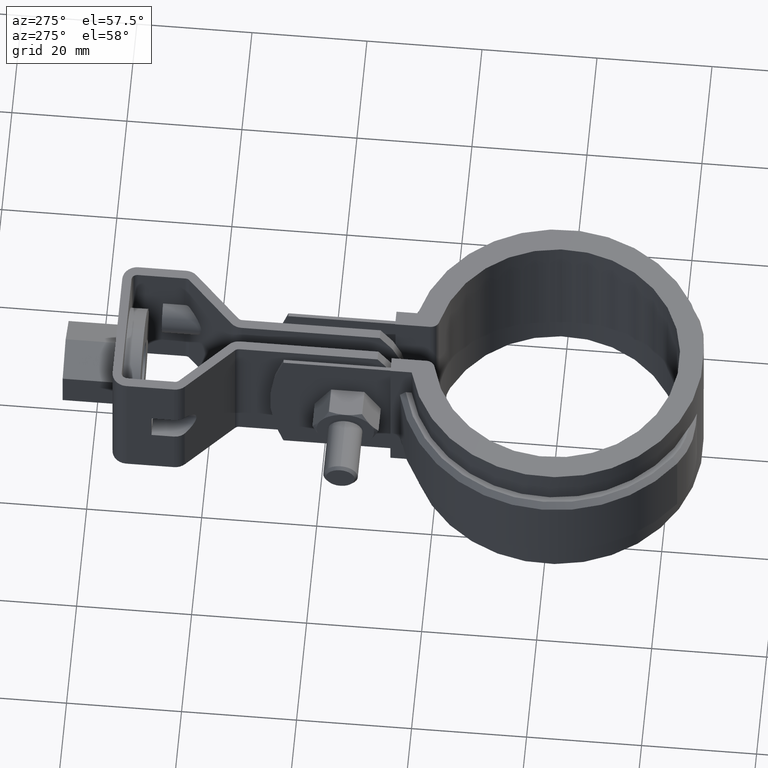
[diagram: clean part render]
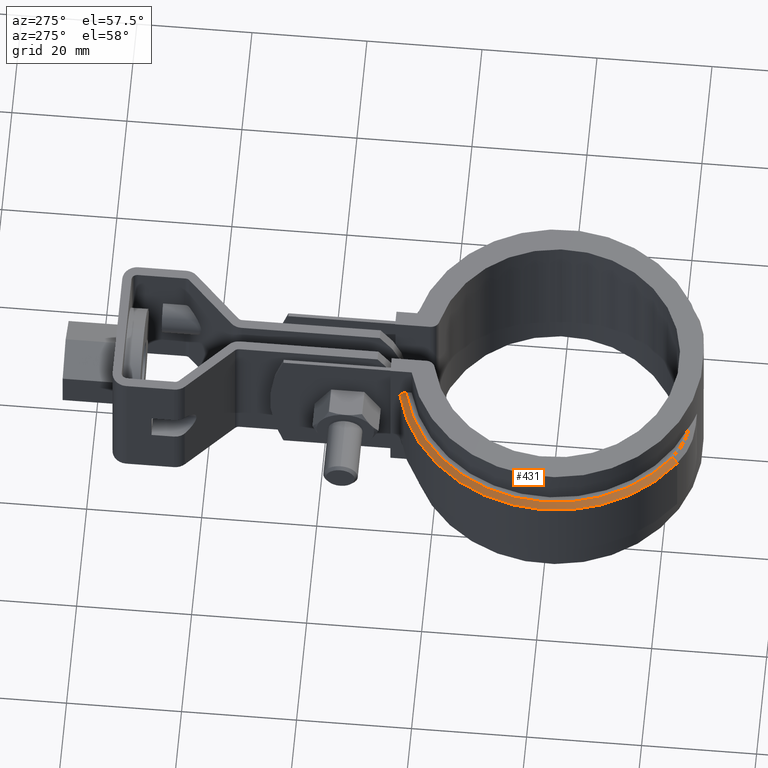
[diagram: same view with one face highlighted and labeled with its STEP entity id]
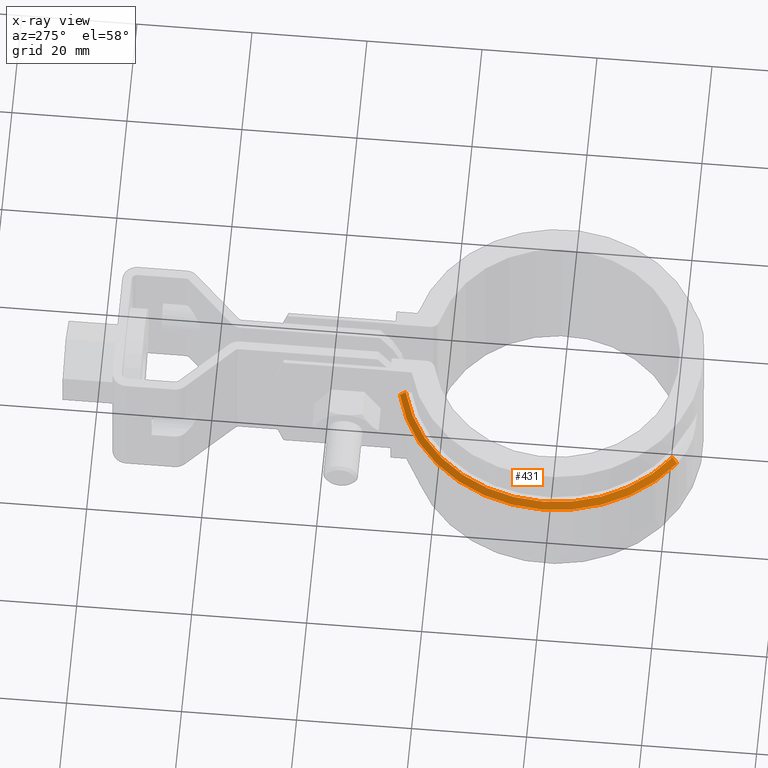
[diagram: x-ray of the same camera — body ghosted, the highlighted face saturated]
A machine part, auxiliary view. The second image highlights one B-rep face of the part: STEP entity #431.
The next image is the same camera in x-ray: the body ghosted, the highlighted face saturated — about 0% of this face is hidden behind the body in this view.
In plain terms, the highlighted conical surface has half-angle 45 deg.
Its self-contained STEP definition (entity closure, byte-faithful):
#431 = ADVANCED_FACE( '', ( #800 ), #801, .T. );
#800 = FACE_OUTER_BOUND( '', #1686, .T. );
#801 = CONICAL_SURFACE( '', #1687, 26.4450000000000, 0.785398163397450 );
#1686 = EDGE_LOOP( '', ( #4116, #4117, #4118, #4119 ) );
#1687 = AXIS2_PLACEMENT_3D( '', #4120, #4121, #4122 );
#4116 = ORIENTED_EDGE( '', *, *, #5550, .F. );
#4117 = ORIENTED_EDGE( '', *, *, #5562, .F. );
#4118 = ORIENTED_EDGE( '', *, *, #5577, .F. );
#4119 = ORIENTED_EDGE( '', *, *, #5583, .F. );
#4120 = CARTESIAN_POINT( '', ( -8.67361737988404E-016, -3.46944695195361E-015, -5.00000000000000 ) );
#4121 = DIRECTION( '', ( 0.000000000000000, 0.000000000000000, -1.00000000000000 ) );
#4122 = DIRECTION( '', ( -1.00000000000000, 0.000000000000000, 0.000000000000000 ) );
#5550 = EDGE_CURVE( '', #6449, #6451, #6452, .T. );
#5562 = EDGE_CURVE( '', #6468, #6449, #6470, .T. );
#5577 = EDGE_CURVE( '', #6489, #6468, #6490, .T. );
#5583 = EDGE_CURVE( '', #6451, #6489, #6496, .F. );
#6449 = VERTEX_POINT( '', #10107 );
#6451 = VERTEX_POINT( '', #10110 );
#6452 = B_SPLINE_CURVE_WITH_KNOTS( '', 3, ( #10111, #10112, #10113, #10114 ), .UNSPECIFIED., .F., .F., ( 4, 4 ), ( 1.47196168001604E-017, 0.00143319236465072 ), .UNSPECIFIED. );
#6468 = VERTEX_POINT( '', #10136 );
#6470 = CIRCLE( '', #10139, 27.4450000000000 );
#6489 = VERTEX_POINT( '', #10165 );
#6490 = LINE( '', #10166, #10167 );
#6496 = CIRCLE( '', #10176, 26.4450000000000 );
#10107 = CARTESIAN_POINT( '', ( -6.10000000000003, 26.7585131313382, -6.00000000000000 ) );
#10110 = CARTESIAN_POINT( '', ( -6.10000000000003, 25.7318484567277, -5.00000000000000 ) );
#10111 = CARTESIAN_POINT( '', ( -6.10000000000002, 26.7585131313382, -6.00000000000000 ) );
#10112 = CARTESIAN_POINT( '', ( -6.10000000000002, 26.4164555659505, -5.66649838385494 ) );
#10113 = CARTESIAN_POINT( '', ( -6.10000000000002, 26.0742402876680, -5.33315843095395 ) );
#10114 = CARTESIAN_POINT( '', ( -6.10000000000002, 25.7318484567277, -5.00000000000000 ) );
#10136 = CARTESIAN_POINT( '', ( -15.9691081303572, -22.3207439508848, -6.00000000000000 ) );
#10139 = AXIS2_PLACEMENT_3D( '', #11211, #11212, #11213 );
#10165 = CARTESIAN_POINT( '', ( -15.3872495721368, -21.5074539544962, -5.00000000000000 ) );
#10166 = CARTESIAN_POINT( '', ( -15.3872495721368, -21.5074539544962, -5.00000000000000 ) );
#10167 = VECTOR( '', #11242, 1000.00000000000 );
#10176 = AXIS2_PLACEMENT_3D( '', #11252, #11253, #11254 );
#11211 = CARTESIAN_POINT( '', ( -8.67361737988404E-016, -3.46944695195361E-015, -6.00000000000000 ) );
#11212 = DIRECTION( '', ( 0.000000000000000, 0.000000000000000, -1.00000000000000 ) );
#11213 = DIRECTION( '', ( -1.00000000000000, 0.000000000000000, 0.000000000000000 ) );
#11242 = DIRECTION( '', ( -0.411436132209028, -0.575082871517554, -0.707106781186547 ) );
#11252 = CARTESIAN_POINT( '', ( -8.67361737988404E-016, -3.46944695195361E-015, -5.00000000000000 ) );
#11253 = DIRECTION( '', ( 0.000000000000000, 0.000000000000000, -1.00000000000000 ) );
#11254 = DIRECTION( '', ( -1.00000000000000, 0.000000000000000, 0.000000000000000 ) );